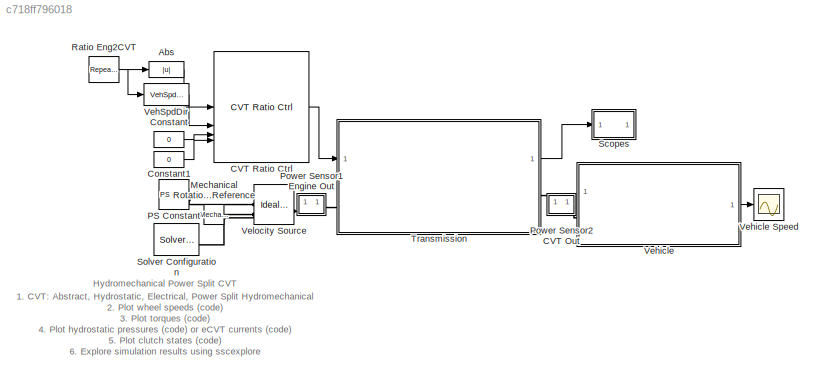
MODEL slx_c718ff796018
KIND model
CONFIG AbsTol = auto
CONFIG EnableMultiTasking = off
CONFIG FixedStep = auto
CONFIG MaxStep = auto
CONFIG MinStep = auto
CONFIG RelTol = 1e-3
CONFIG SampleTimeConstraint = Unconstrained
CONFIG SolverName = VariableStepAuto
CONFIG StartFcn = tic
CONFIG StartTime = 0.0
CONFIG StopFcn = Elapsed_Sim_Time = toc;\ndisp(['Elapsed Sim Time = ' num2str(Elapsed_Sim_Time)]);
CONFIG StopTime = 200
BLOCK [Abs] Abs
  SaturateOnIntegerOverflow = off
  ZeroCross = off
BLOCK [Reference] CVT Ratio Ctrl  REF=sm_wheel_loader_lib/Controller/CVT Ratio Ctrl  (lib defined in slx_2f13f0afc9e9, slx_78fdec152d5c)
  SourceBlock = sm_wheel_loader_lib/Controller/CVT Ratio Ctrl
  SourceType = SubSystem
BLOCK [Constant] Constant
  Value = 0
BLOCK [Constant] Constant1
  Value = 0
BLOCK [Reference] Mechanical Rotational Reference  REF=fl_lib/Mechanical/Rotational Elements/Mechanical
Rotational Reference
  SourceBlock = fl_lib/Mechanical/Rotational Elements/Mechanical\nRotational Reference
  SourceType = Mechanical\nRotational Reference
BLOCK [Reference] PS Constant  REF=fl_lib/Physical Signals/Sources/PS Constant
  SourceBlock = fl_lib/Physical Signals/Sources/PS Constant
  SourceType = PS Constant
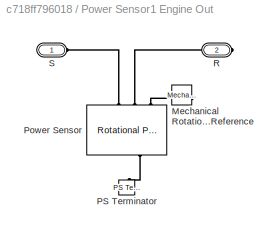
BLOCK [SubSystem] Power Sensor1 Engine Out
BLOCK [Reference] Power Sensor1 Engine Out/Mechanical Rotational Reference  REF=fl_lib/Mechanical/Rotational Elements/Mechanical
Rotational Reference
  NameLocation = top
  SourceBlock = fl_lib/Mechanical/Rotational Elements/Mechanical\nRotational Reference
  SourceType = Mechanical\nRotational Reference
BLOCK [Reference] Power Sensor1 Engine Out/PS Terminator  REF=fl_lib/Physical Signals/Sinks/PS Terminator
  NameLocation = left
  SourceBlock = fl_lib/Physical Signals/Sinks/PS Terminator
  SourceType = PS Terminator
BLOCK [Reference] Power Sensor1 Engine Out/Power Sensor  REF=sdl_lib/Sensors/Rotational Power
Sensor
  NameLocation = left
  SourceBlock = sdl_lib/Sensors/Rotational Power\nSensor
  SourceType = Rotational Power\nSensor
BLOCK [PMIOPort] Power Sensor1 Engine Out/R
  Port = 2
  Side = Right
BLOCK [PMIOPort] Power Sensor1 Engine Out/S
  Side = Left
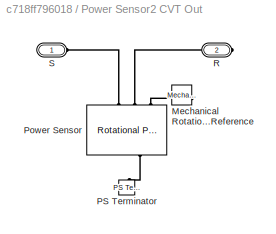
BLOCK [SubSystem] Power Sensor2 CVT Out
BLOCK [Reference] Power Sensor2 CVT Out/Mechanical Rotational Reference  REF=fl_lib/Mechanical/Rotational Elements/Mechanical
Rotational Reference
  NameLocation = top
  SourceBlock = fl_lib/Mechanical/Rotational Elements/Mechanical\nRotational Reference
  SourceType = Mechanical\nRotational Reference
BLOCK [Reference] Power Sensor2 CVT Out/PS Terminator  REF=fl_lib/Physical Signals/Sinks/PS Terminator
  NameLocation = left
  SourceBlock = fl_lib/Physical Signals/Sinks/PS Terminator
  SourceType = PS Terminator
BLOCK [Reference] Power Sensor2 CVT Out/Power Sensor  REF=sdl_lib/Sensors/Rotational Power
Sensor
  NameLocation = left
  SourceBlock = sdl_lib/Sensors/Rotational Power\nSensor
  SourceType = Rotational Power\nSensor
BLOCK [PMIOPort] Power Sensor2 CVT Out/R
  Port = 2
  Side = Right
BLOCK [PMIOPort] Power Sensor2 CVT Out/S
  Side = Left
BLOCK [Reference] Ratio Eng2CVT  REF=simulink/Sources/Repeating
Sequence
  SourceBlock = simulink/Sources/Repeating\nSequence
  SourceType = Repeating table
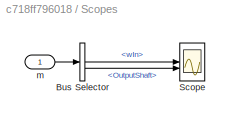
BLOCK [SubSystem] Scopes
BLOCK [BusSelector] Scopes/Bus Selector
  OutputSignals = wIn,OutputShaft
BLOCK [Scope] Scopes/Scope
  Floating = off
  NumInputPorts = 2
  ScopeSpecificationString = Simulink.scopes.TimeScopeBlockCfg('CurrentConfiguration', extmgr.ConfigurationSet(extmgr.Configuration('Core','General UI',true),extmgr.Configuration('Core','Source UI',true),extmgr.Configuration('Sources','WiredSimulink',true,'DataLoggingVariableName','ScopeData4'),extmgr.Configuration('Visuals','Time Domain',true,'SerializedDisplays',{struct('MinYLimReal','4647.37296','MaxYLimReal','4651.03483',...<+2073ch>
BLOCK [Inport] Scopes/m
BLOCK [Reference] Solver Configuration  REF=nesl_utility/Solver
Configuration
  SourceBlock = nesl_utility/Solver\nConfiguration
  SourceType = Solver\nConfiguration
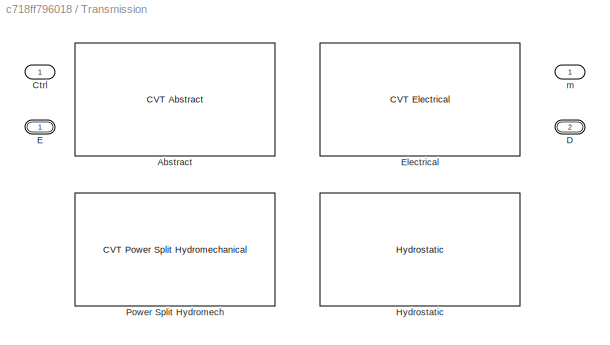
BLOCK [SubSystem] Transmission
  AttributesFormatString = %<LabelModeActiveChoice>
  LabelModeActiveChoice = Abstract
  Variant = on
  VariantControl = Choice
  VariantControlMode = label
BLOCK [Reference] Transmission/Abstract  REF=sm_wheel_loader_lib/CVT Abstract  (lib defined in slx_2f13f0afc9e9, slx_78fdec152d5c)
  SourceBlock = sm_wheel_loader_lib/CVT Abstract
  SourceType = Continuously Variable Transmission (Abstract)
BLOCK [Inport] Transmission/Ctrl
BLOCK [PMIOPort] Transmission/D
  Port = 2
  Side = Right
BLOCK [PMIOPort] Transmission/E
  Side = Left
BLOCK [Reference] Transmission/Electrical  REF=sm_wheel_loader_lib/CVT Electrical  (lib defined in slx_2f13f0afc9e9, slx_78fdec152d5c)
  SourceBlock = sm_wheel_loader_lib/CVT Electrical
  SourceType = Electrical Continuously Variable Transmission (eCVT)
BLOCK [Reference] Transmission/Hydrostatic  REF=sm_wheel_loader_lib/Hydrostatic  (lib defined in slx_2f13f0afc9e9, slx_78fdec152d5c)
  SourceBlock = sm_wheel_loader_lib/Hydrostatic
BLOCK [Reference] Transmission/Power Split Hydromech  REF=sm_wheel_loader_lib/CVT Power Split Hydromechanical  (lib defined in slx_2f13f0afc9e9, slx_78fdec152d5c)
  LibrarySourceBlock = sm_wheel_loader_lib/CVT Powersplit Hydromechanical
  SourceBlock = sm_wheel_loader_lib/CVT Power Split Hydromechanical
BLOCK [Outport] Transmission/m
BLOCK [Reference] VehSpdDir  REF=sm_wheel_loader_lib/Controller/Desired Ratio Calc/VehSpdDir  (lib defined in slx_2f13f0afc9e9, slx_78fdec152d5c)
  SourceBlock = sm_wheel_loader_lib/Controller/Desired Ratio Calc/VehSpdDir
  SourceType = SubSystem
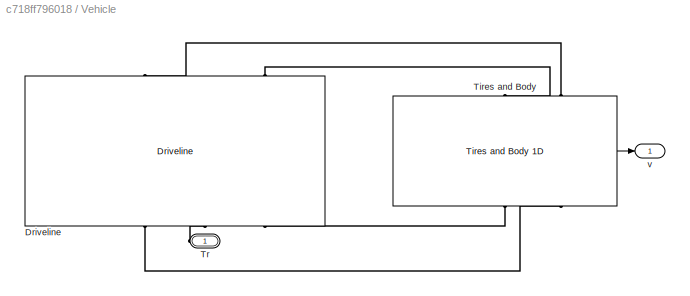
BLOCK [SubSystem] Vehicle
BLOCK [Scope] Vehicle Speed
  Floating = off
  NumInputPorts = 1
  ScopeSpecificationString = Simulink.scopes.TimeScopeBlockCfg('CurrentConfiguration', extmgr.ConfigurationSet(extmgr.Configuration('Core','General UI',true),extmgr.Configuration('Core','Source UI',true),extmgr.Configuration('Sources','WiredSimulink',true,'DataLoggingVariableName','ScopeData1'),extmgr.Configuration('Visuals','Time Domain',true,'SerializedDisplays',{struct('MinYLimReal','-37.51249','MaxYLimReal','37.51245','YL...<+1651ch>
BLOCK [Reference] Vehicle/Driveline  REF=sm_wheel_loader_lib/Wheel Loader Vehicle/Driveline/Driveline/Driveline 1D/Driveline  (lib defined in slx_2f13f0afc9e9, slx_78fdec152d5c)
  NameLocation = top
  SourceBlock = sm_wheel_loader_lib/Wheel Loader Vehicle/Driveline/Driveline/Driveline 1D/Driveline
BLOCK [Reference] Vehicle/Tires and Body  REF=sm_wheel_loader_lib/Tires and Body 1D  (lib defined in slx_2f13f0afc9e9, slx_78fdec152d5c)
  NameLocation = top
  SourceBlock = sm_wheel_loader_lib/Tires and Body 1D
BLOCK [PMIOPort] Vehicle/Tr
  Side = Left
BLOCK [Outport] Vehicle/v
BLOCK [Reference] Velocity Source  REF=fl_lib/Mechanical/Mechanical Sources/Ideal Angular
Velocity Source
  SourceBlock = fl_lib/Mechanical/Mechanical Sources/Ideal Angular\nVelocity Source
  SourceType = Ideal Angular\nVelocity Source
ANNOTATION (root): 1. CVT: Abstract , Hydrostatic , Electrical , Power Split Hydromechanical 2. Plot wheel speeds ( code ) 3. Plot torques ( code ) 4. Plot hydrostatic pressures ( code ) or eCVT currents ( code ) 5. Plot clutch states ( code ) 6. Explore simulation results using sscexplore 7. Learn more about this example
ANNOTATION (root): Hydromechanical Power Split CVT
LINE Abs:1 -> CVT Ratio Ctrl:1
LINE CVT Ratio Ctrl:1 -> Transmission:1
LINE Constant1:1 -> CVT Ratio Ctrl:4
LINE Constant:1 -> CVT Ratio Ctrl:3
NET Ratio Eng2CVT:1 -> Abs:1, VehSpdDir:1
LINE Scopes/Bus Selector:1 -> Scopes/Scope:1
LINE Scopes/Bus Selector:2 -> Scopes/Scope:2
LINE Scopes/m:1 -> Scopes/Bus Selector:1
LINE Transmission:1 -> Scopes:1
LINE VehSpdDir:1 -> CVT Ratio Ctrl:2
LINE Vehicle/Tires and Body:1 -> Vehicle/v:1
LINE Vehicle:1 -> Vehicle Speed:1
PNET net1: Mechanical Rotational Reference:LConn1 -- Solver Configuration:RConn1 -- Velocity Source:RConn2
PLINE PS Constant:RConn1 -- Velocity Source:RConn1
PLINE Power Sensor1 Engine Out/Mechanical Rotational Reference:LConn1 -- Power Sensor1 Engine Out/Power Sensor:LConn3
PLINE Power Sensor1 Engine Out/PS Terminator:LConn1 -- Power Sensor1 Engine Out/Power Sensor:RConn1
PLINE Power Sensor1 Engine Out/Power Sensor:LConn1 -- Power Sensor1 Engine Out/S:RConn1
PLINE Power Sensor1 Engine Out/Power Sensor:LConn2 -- Power Sensor1 Engine Out/R:RConn1
PLINE Power Sensor1 Engine Out:LConn1 -- Velocity Source:LConn1
PLINE Power Sensor1 Engine Out:RConn1 -- Transmission:LConn1
PLINE Power Sensor2 CVT Out/Mechanical Rotational Reference:LConn1 -- Power Sensor2 CVT Out/Power Sensor:LConn3
PLINE Power Sensor2 CVT Out/PS Terminator:LConn1 -- Power Sensor2 CVT Out/Power Sensor:RConn1
PLINE Power Sensor2 CVT Out/Power Sensor:LConn1 -- Power Sensor2 CVT Out/S:RConn1
PLINE Power Sensor2 CVT Out/Power Sensor:LConn2 -- Power Sensor2 CVT Out/R:RConn1
PLINE Power Sensor2 CVT Out:LConn1 -- Transmission:RConn1
PLINE Power Sensor2 CVT Out:RConn1 -- Vehicle:LConn1
PLINE Vehicle/Driveline:LConn1 -- Vehicle/Tires and Body:LConn2
PLINE Vehicle/Driveline:LConn3 -- Vehicle/Tires and Body:LConn1
PLINE Vehicle/Driveline:RConn1 -- Vehicle/Tires and Body:RConn2
PLINE Vehicle/Driveline:RConn2 -- Vehicle/Tr:RConn1
PLINE Vehicle/Driveline:RConn3 -- Vehicle/Tires and Body:RConn1
note: NET lines group one-source signal fan-out (src -> all destinations, sorted); 1:1 wires keep LINE; PNET lines group multi-terminal physical nets as a canonical sorted terminal list (undirected conserving connections); 2-terminal nets keep the pairwise PLINE form
